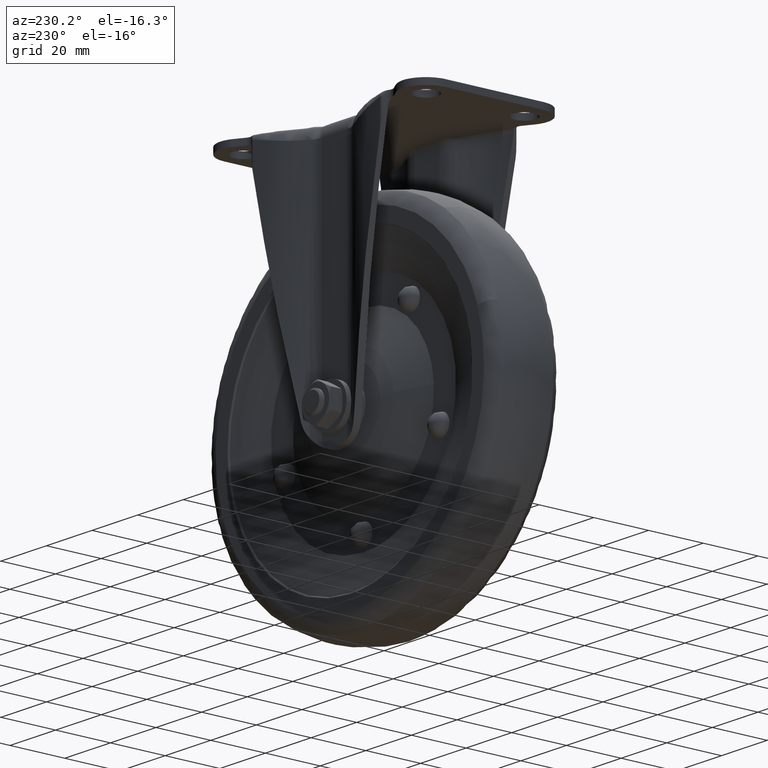
[diagram: clean part render]
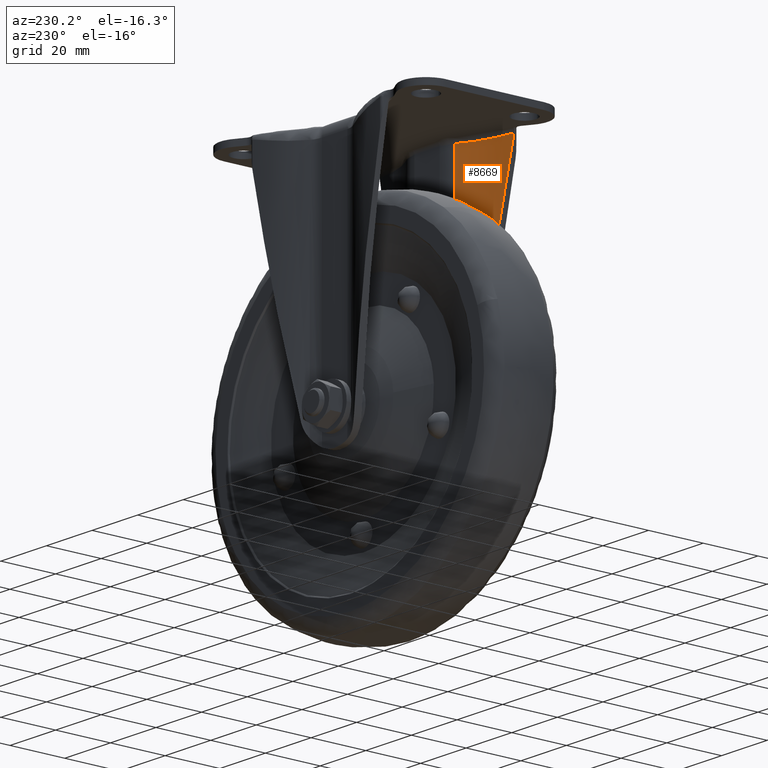
[diagram: same view with one face highlighted and labeled with its STEP entity id]
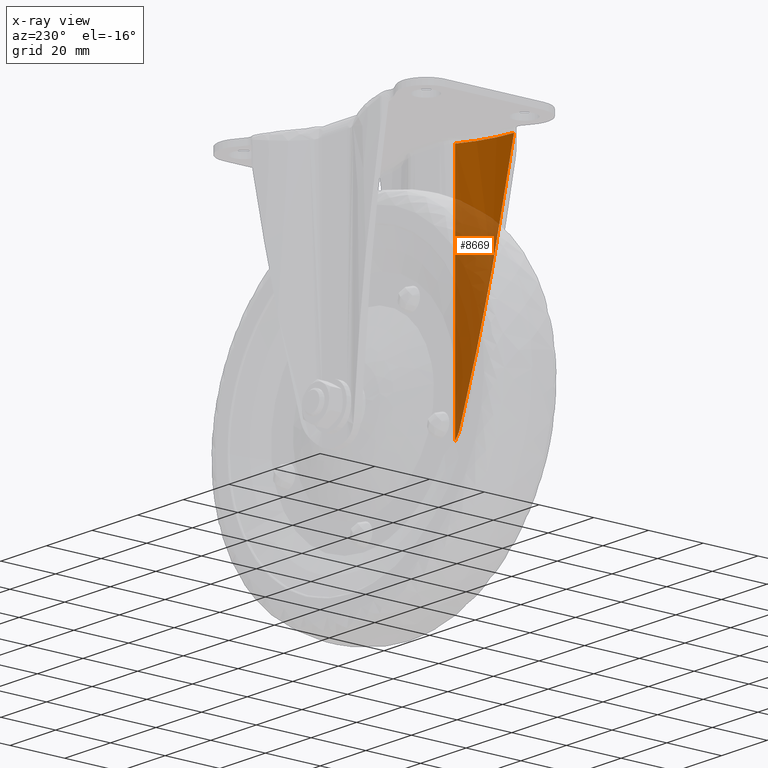
[diagram: x-ray of the same camera — body ghosted, the highlighted face saturated]
A machine part, auxiliary view. The second image highlights one B-rep face of the part: STEP entity #8669.
The next image is the same camera in x-ray: the body ghosted, the highlighted face saturated — about 61% of this face is hidden behind the body in this view.
In plain terms, the highlighted face is a freeform B-spline surface patch.
Its self-contained STEP definition (entity closure, byte-faithful):
#6428=CARTESIAN_POINT('',(-10.584618067755100,-17.162613235494749,-3.800000000000000));
#6429=VERTEX_POINT('',#6428);
#6443=CARTESIAN_POINT('',(-29.453706233185400,-22.949273127477099,-3.800000000000000));
#6444=VERTEX_POINT('',#6443);
#6445=CARTESIAN_POINT('',(-29.453706233185411,-22.949273127477110,-3.800000000000000));
#6446=CARTESIAN_POINT('',(-19.292613304567432,-22.425067077781829,-3.800000000000000));
#6447=CARTESIAN_POINT('',(-10.584618067755111,-17.162613235494771,-3.800000000000000));
#6455=(BOUNDED_CURVE()B_SPLINE_CURVE(2,(#6445,#6446,#6447),.UNSPECIFIED.,.F.,.U.)CURVE()GEOMETRIC_REPRESENTATION_ITEM()QUASI_UNIFORM_CURVE()RATIONAL_B_SPLINE_CURVE((1.0,0.969888281751118,1.0))REPRESENTATION_ITEM(''));
#6456=EDGE_CURVE('',#6444,#6429,#6455,.T.);
#8420=CARTESIAN_POINT('',(-11.739877332031099,-17.835002671639451,-87.485009431393294));
#8421=VERTEX_POINT('',#8420);
#8422=CARTESIAN_POINT('',(-29.453706233185390,-22.949273127477110,-3.799999999999993));
#8423=CARTESIAN_POINT('',(-19.999325773883875,-22.461526044785995,-48.465098794821849));
#8424=CARTESIAN_POINT('',(-11.739877332031069,-17.835002671639462,-87.485009431393323));
#8432=(BOUNDED_CURVE()B_SPLINE_CURVE(2,(#8422,#8423,#8424),.UNSPECIFIED.,.F.,.U.)CURVE()GEOMETRIC_REPRESENTATION_ITEM()QUASI_UNIFORM_CURVE()RATIONAL_B_SPLINE_CURVE((1.0,0.973773658618248,1.0))REPRESENTATION_ITEM(''));
#8433=EDGE_CURVE('',#6444,#8421,#8432,.T.);
#8462=CARTESIAN_POINT('',(-10.584618067755100,-17.162613235494749,-90.653834216815497));
#8463=VERTEX_POINT('',#8462);
#8464=CARTESIAN_POINT('',(-10.584618067755100,-17.162613235494749,-90.653834216815497));
#8465=CARTESIAN_POINT('',(-10.847677083206140,-17.321586212507459,-90.161358089432554));
#8466=CARTESIAN_POINT('',(-11.076273418871800,-17.455726182081051,-89.651048605587746));
#8467=CARTESIAN_POINT('',(-11.462623166167170,-17.678971404022139,-88.595046547950744));
#8468=CARTESIAN_POINT('',(-11.620417392215559,-17.768087282845361,-88.049371108697613));
#8469=CARTESIAN_POINT('',(-11.739877332031099,-17.835002671639451,-87.485009431393294));
#8470=B_SPLINE_CURVE_WITH_KNOTS('',3,(#8464,#8465,#8466,#8467,#8468,#8469),.UNSPECIFIED.,.F.,.U.,(4,2,4),(0.0,0.500000000000000,1.0),.UNSPECIFIED.);
#8471=EDGE_CURVE('',#8463,#8421,#8470,.T.);
#8645=CARTESIAN_POINT('',(-10.282799125598780,-16.978414036737810,-92.825180072235881));
#8646=CARTESIAN_POINT('',(-10.282799125598780,-16.978414036737810,-1.574370498194099));
#8647=CARTESIAN_POINT('',(-19.553936194702143,-22.692230066443113,-92.825180072235881));
#8648=CARTESIAN_POINT('',(-19.553936194702143,-22.692230066443113,-1.574370498194100));
#8649=CARTESIAN_POINT('',(-30.440355326069401,-22.988126453072919,-92.825180072235881));
#8650=CARTESIAN_POINT('',(-30.440355326069401,-22.988126453072919,-1.574370498194099));
#8658=(BOUNDED_SURFACE()B_SPLINE_SURFACE(1,2,((#8645,#8647,#8649),(#8646,#8648,#8650)),.UNSPECIFIED.,.F.,.F.,.U.)B_SPLINE_SURFACE_WITH_KNOTS((2,2),(3,3),(0.0,91.250809574041796),(0.0,21.401077966875299),.UNSPECIFIED.)GEOMETRIC_REPRESENTATION_ITEM()RATIONAL_B_SPLINE_SURFACE(((1.0,0.963600596321759,0.995604630544255),(1.0,0.963600596321759,0.995604630544255)))REPRESENTATION_ITEM('')SURFACE());
#8659=ORIENTED_EDGE('',*,*,#8433,.F.);
#8660=ORIENTED_EDGE('',*,*,#6456,.T.);
#8661=CARTESIAN_POINT('',(-10.584618067755100,-17.162613235494749,-90.653834216815497));
#8662=CARTESIAN_POINT('',(-10.584618067755100,-17.162613235494749,-3.800000000000000));
#8663=QUASI_UNIFORM_CURVE('',1,(#8661,#8662),.UNSPECIFIED.,.F.,.U.);
#8664=EDGE_CURVE('',#8463,#6429,#8663,.T.);
#8665=ORIENTED_EDGE('',*,*,#8664,.F.);
#8666=ORIENTED_EDGE('',*,*,#8471,.T.);
#8667=EDGE_LOOP('',(#8659,#8660,#8665,#8666));
#8668=FACE_OUTER_BOUND('',#8667,.T.);
#8669=ADVANCED_FACE('',(#8668),#8658,.F.);